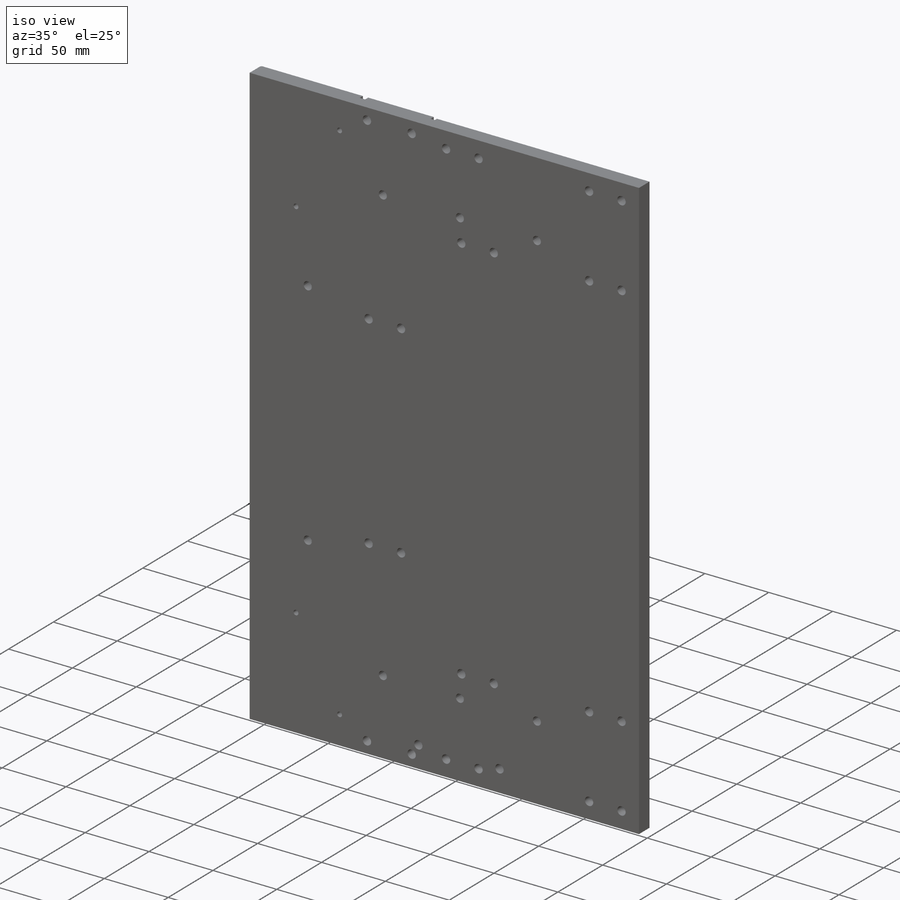
[diagram: iso view]
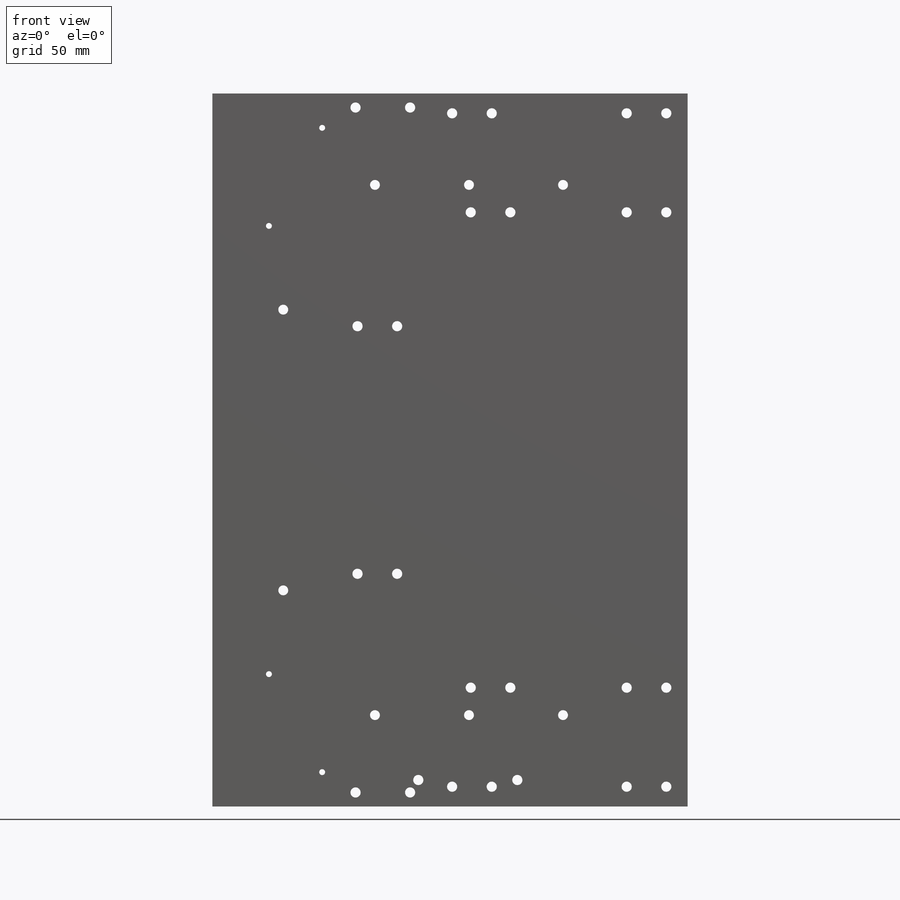
[diagram: front view]
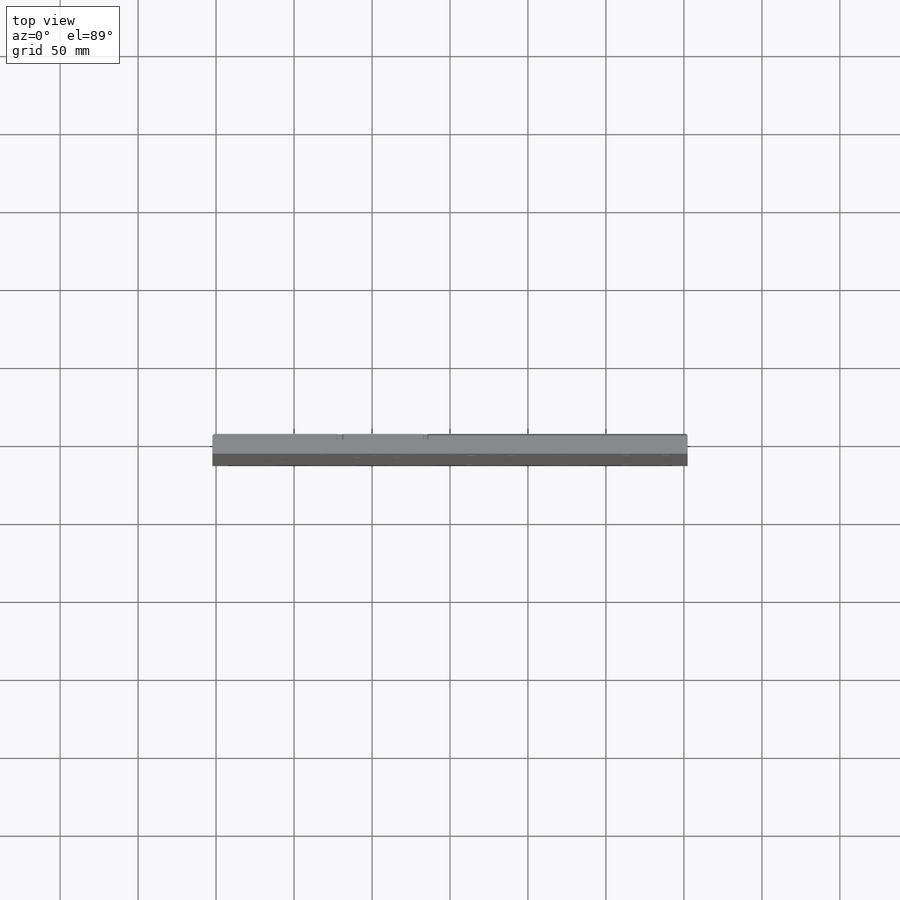
[diagram: top view]
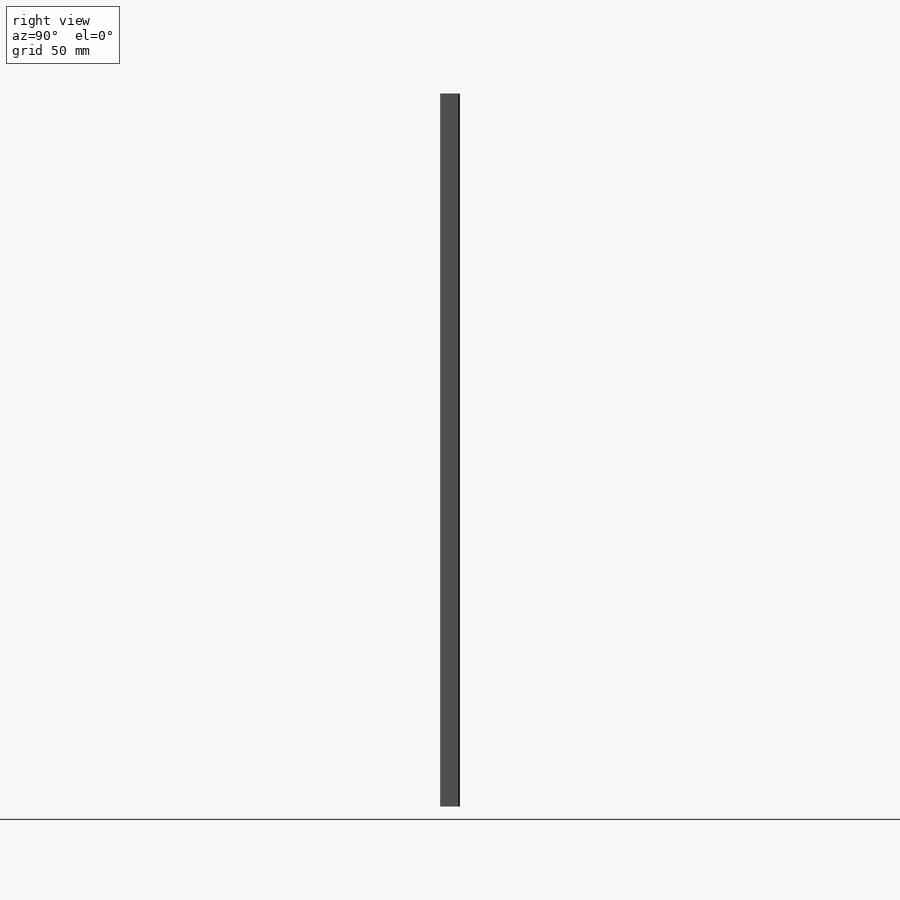
[diagram: right view]
SOLIDWORKS PART (.sldprt)
format: sldprt  version: not decoded by parser v0  size: 1,542,656 bytes
history: native  units: mm
features: thread x24, sketch x23, hole x9, mirror x3, cut_extrude x3, fillet x2, material x1, extrude x1, chamfer x1 (+14 scaffold rows collapsed)
feature tree (81):
  scaffold x14  (default folders/planes/origin — collapsed)
  material  "Material <not specified>"
  sketch  "Sketch1"  dims[D1=304.8mm D2=457.2mm]
  extrude  "Extrude1"  Depth=12.7mm
  hole  "5/16-18 Tapped Hole1"  Diameter=6.5278mm Depth=12.701mm
  sketch  "3DSketch4"  dims[c1.D1=~311.868573mm c1.D4=93.8878mm c1.D2=25.4mm c1.D3=215.9mm c2.D1=58.5122mm c2.D4=58.5122mm c3.D1=~153.76398mm]
  sketch  "Sketch7"  dims[hole-wizard template sketch: 54 standard entries collapsed; hole parameters kept: c17.Thru Tap Drill Dia.=6.5278mm c17.Thru Tap Drill Depth=12.701mm c17.Near C'Sink Dia.=9.2075mm c17.D4=~3.666174mm c17.Near C'Sink Angle=90.0deg]
  thread  "Hole Thread9"  Diameter=7.9375mm  [1 undecoded]
  thread  "Hole Thread10"  Diameter=7.9375mm  [1 undecoded]
  hole  "1/4 (0.25) Diameter Hole2"  Diameter=6.35mm Depth=12.701mm
  sketch  "3DSketch5"
  sketch  "Sketch9"  dims[hole-wizard template sketch: 54 standard entries collapsed; hole parameters kept: c17.Thru Hole Dia.=6.35mm c17.Thru Hole Depth=12.701mm c17.Near C'Sink Dia.=7.112mm c17.D4=~3.666174mm c17.Near C'Sink Angle=90.0deg]
  mirror  "Mirror2"
  sketch  "Sketch10"  dims[c1.D1=~51.623964mm c2.D1=61.5deg c2.D2=40.0mm c2.D3=50.8mm c2.D4=30.9652mm c2.D5=49.4048mm c3.D2=40.0mm c3.D1=50.0mm c4.D1=61.5deg c5.D1=6.0mm c5.D5=10.16mm c5.D6=1.0mm c5.D7=3.175mm]
  sketch  "Sketch11"  dims[c1.D2=50.0mm c2.D2=~178.551162deg c3.D2=~71.54418mm c3.D1=0.0mm]
  cut_extrude  "Cut-Extrude1"  Depth=6mm
  hole  "#10-24 Tapped Hole1"  Diameter=3.7973mm Depth=6.7mm
  sketch  "Sketch13"  dims[D1=22.352mm]
  sketch  "Sketch12"  dims[hole-wizard template sketch: 54 standard entries collapsed; hole parameters kept: c17.Thru Tap Drill Dia.=3.7973mm c17.Thru Tap Drill Depth=6.7mm c17.Near C'Sink Dia.=6.096mm c17.D4=~3.666174mm c17.Near C'Sink Angle=90.0deg]
  thread  "Hole Thread11"  Diameter=4.826mm  [1 undecoded]
  thread  "Hole Thread12"  Diameter=4.826mm  [1 undecoded]
  fillet  "Fillet1"  Radius=3.175mm
  mirror  "Mirror3"
  hole  "5/16-18 Tapped Hole2"  Diameter=6.5278mm Depth=32.4612mm
  sketch  "Sketch15"  dims[D1=63.5mm D2=17.0mm D3=132.08mm]
  sketch  "Sketch14"  dims[hole-wizard template sketch: 40 standard entries collapsed; hole parameters kept: c13.Tap Drill Depth=32.4612mm c13.Near C'Sink Dia.=9.2075mm c13.D4=~33.297463mm c13.Near C'Sink Angle=90.0deg c14.D5=~14.816244mm c14.Drill Angle=118.0deg]
  thread  "Hole Thread13"  Diameter=12.7mm  [1 undecoded]
  thread  "Hole Thread14"  Diameter=12.7mm  [1 undecoded]
  hole  "5/16-18 Tapped Hole3"  Diameter=6.5278mm Depth=12.7mm
  sketch  "Sketch17"  dims[D1=12.7mm D2=76.2mm D3=13.7mm D4=39.1mm]
  sketch  "Sketch16"  dims[hole-wizard template sketch: 54 standard entries collapsed; hole parameters kept: c17.Thru Tap Drill Dia.=6.5278mm c17.Thru Tap Drill Depth=12.7mm c17.Near C'Sink Dia.=9.2075mm c17.D4=~3.666174mm c17.Near C'Sink Angle=90.0deg]
  thread  "Hole Thread15"  Diameter=7.9375mm  [1 undecoded]
  thread  "Hole Thread16"  Diameter=7.9375mm  [1 undecoded]
  thread  "Hole Thread17"  Diameter=7.9375mm  [1 undecoded]
  thread  "Hole Thread18"  Diameter=7.9375mm  [1 undecoded]
  thread  "Hole Thread19"  Diameter=7.9375mm  [1 undecoded]
  thread  "Hole Thread20"  Diameter=7.9375mm  [1 undecoded]
  thread  "Hole Thread21"  Diameter=7.9375mm  [1 undecoded]
  thread  "Hole Thread22"  Diameter=7.9375mm  [1 undecoded]
  hole  "5/16-18 Tapped Hole4"  Diameter=6.5278mm Depth=32.4612mm
  sketch  "Sketch19"  dims[D1=76.2mm D2=25.4mm D3=113.7mm]
  sketch  "Sketch18"  dims[hole-wizard template sketch: 40 standard entries collapsed; hole parameters kept: c13.Tap Drill Depth=32.4612mm c13.Near C'Sink Dia.=9.2075mm c13.D4=~33.297463mm c13.Near C'Sink Angle=90.0deg c14.D5=~14.816244mm c14.Drill Angle=118.0deg]
  thread  "Hole Thread23"  Diameter=12.7mm  [1 undecoded]
  thread  "Hole Thread24"  Diameter=12.7mm  [1 undecoded]
  thread  "Hole Thread25"  Diameter=12.7mm  [1 undecoded]
  thread  "Hole Thread26"  Diameter=12.7mm  [1 undecoded]
  hole  "5/16-18 Tapped Hole5"  Diameter=6.5278mm Depth=32.4612mm
  sketch  "Sketch21"  dims[D1=25.4mm D2=186.2966mm D3=149.225mm]
  sketch  "Sketch20"  dims[hole-wizard template sketch: 40 standard entries collapsed; hole parameters kept: c13.Tap Drill Depth=32.4612mm c13.Near C'Sink Dia.=9.2075mm c13.D4=~33.297463mm c13.Near C'Sink Angle=90.0deg c14.D5=~14.816244mm c14.Drill Angle=118.0deg]
  thread  "Hole Thread27"  Diameter=12.7mm  [1 undecoded]
  thread  "Hole Thread28"  Diameter=12.7mm  [1 undecoded]
  thread  "Hole Thread29"  Diameter=12.7mm  [1 undecoded]
  thread  "Hole Thread30"  Diameter=12.7mm  [1 undecoded]
  hole  "1/4 (0.25) Diameter Hole3"  Diameter=6.35mm Depth=12.7mm
  sketch  "Sketch23"  dims[D1=180.0mm D2=45.4787mm D3=340.0mm D4=104.2797mm D5=164.5793mm D6=224.8789mm]
  sketch  "Sketch22"  dims[hole-wizard template sketch: 54 standard entries collapsed; hole parameters kept: c17.Thru Hole Dia.=6.35mm c17.Thru Hole Depth=12.7mm c17.Near C'Sink Dia.=7.112mm c17.D4=~3.666174mm c17.Near C'Sink Angle=90.0deg]
  hole  "5/16-18 Tapped Hole6"  Diameter=6.5278mm Depth=12.7mm
  sketch  "Sketch25"  dims[D1=109.3343mm D2=9.0mm D3=35.0mm]
  sketch  "Sketch24"  dims[hole-wizard template sketch: 54 standard entries collapsed; hole parameters kept: c17.Thru Tap Drill Dia.=6.5278mm c17.Thru Tap Drill Depth=12.7mm c17.Near C'Sink Dia.=9.2075mm c17.D4=~3.666174mm c17.Near C'Sink Angle=90.0deg]
  thread  "Hole Thread31"  Diameter=7.9375mm  [1 undecoded]
  thread  "Hole Thread32"  Diameter=7.9375mm  [1 undecoded]
  sketch  "Sketch26"  dims[D1=27.5mm D2=~3.17754mm D3=10.5875mm]
  cut_extrude  "Cut-Extrude2"  Depth=3.429mm
  sketch  "Sketch27"  dims[D1=0.5mm]
  cut_extrude  "Cut-Extrude3"  [1 undecoded]
  mirror  "Mirror4"
  fillet  "Fillet2"  Radius=1.5875mm
  chamfer  "Chamfer1"  Distance=1.016mm Angle=45deg
decode coverage: 61 of 66 modeling features carry decoded parameters
note: ~ marks probable driven/reference dimensions
note: 25 parameter values undecoded
summary: Diameter pulled from absorbed wizard sketch
note: suppression state not decoded; provenance and decode notes live in map.json
